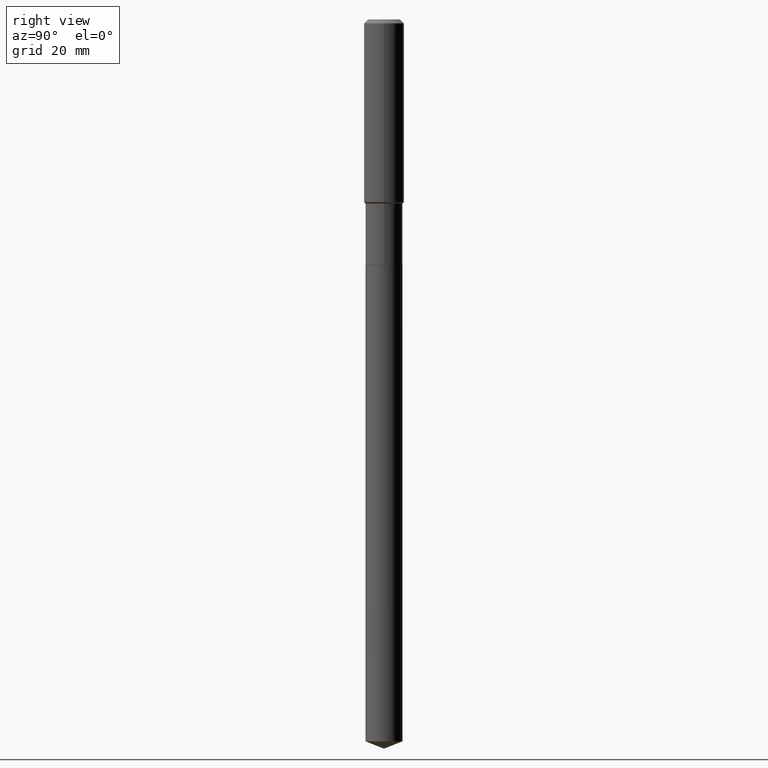
[diagram: clean part render]
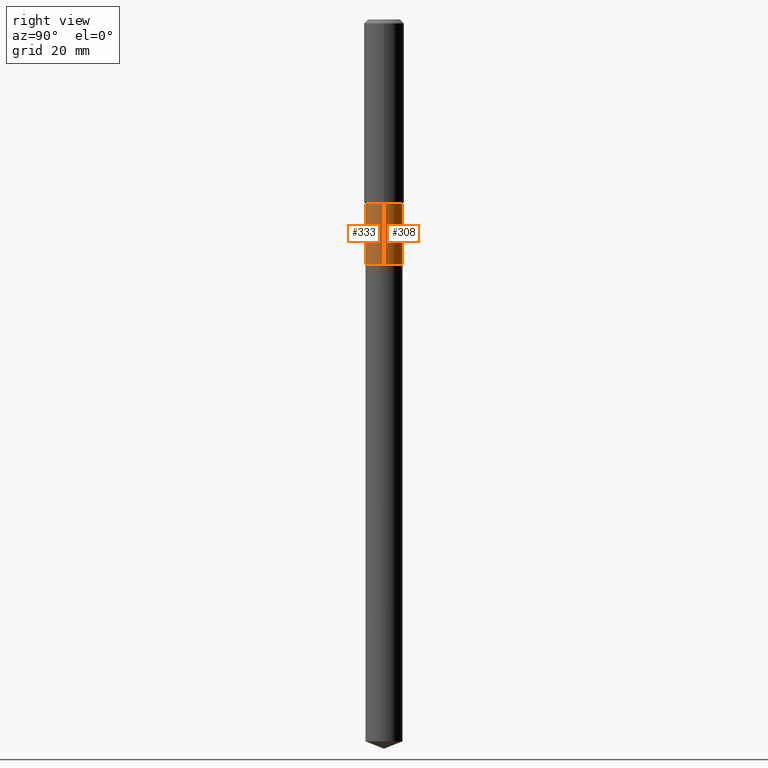
[diagram: same view with one multi-face feature highlighted, each face labeled with its STEP entity id]
A machine part, right view. The highlighted faces form ONE feature: a constant-radius fillet chain: 2 tangent blend faces with common blend radius 3.6995 mm. The faces share edges in the B-rep.
Their STEP definitions:
[1] entity #308 (Cylinder):
#4 = DIRECTION ( 'NONE',  ( -2.445468806185136877E-29, 3.491481338843145188E-15, 1.000000000000000000 ) ) ;
#30 = CARTESIAN_POINT ( 'NONE',  ( 0.1456500000000000017, -7.764356201319383773E-15, -1.932499999999999885 ) ) ;
#35 = CARTESIAN_POINT ( 'NONE',  ( -0.1456499999999999462, -4.874077523223553244E-15, -1.452299999999999702 ) ) ;
#41 = DIRECTION ( 'NONE',  ( -2.445468806185136597E-29, 3.491481338843145583E-15, 1.000000000000000000 ) ) ;
#45 = VECTOR ( 'NONE', #4, 39.37007874015748143 ) ;
#57 = EDGE_CURVE ( 'NONE', #89, #142, #141, .T. ) ;
#85 = CARTESIAN_POINT ( 'NONE',  ( 0.1456499999999999462, -6.087746862406903903E-15, -1.452299999999999702 ) ) ;
#86 = DIRECTION ( 'NONE',  ( 1.000000000000000000, -6.982962677686265922E-15, 4.876176775795935232E-29 ) ) ;
#89 = VERTEX_POINT ( 'NONE', #30 ) ;
#104 = VERTEX_POINT ( 'NONE', #35 ) ;
#113 = CARTESIAN_POINT ( 'NONE',  ( 3.551554347222673607E-29, -5.070678348401899637E-15, -1.452299999999999702 ) ) ;
#141 = LINE ( 'NONE', #327, #410 ) ;
#142 = VERTEX_POINT ( 'NONE', #85 ) ;
#147 = EDGE_CURVE ( 'NONE', #311, #104, #377, .T. ) ;
#150 = AXIS2_PLACEMENT_3D ( 'NONE', #164, #468, #86 ) ;
#153 = DIRECTION ( 'NONE',  ( -2.445468806185136597E-29, 3.491481338843145583E-15, 1.000000000000000000 ) ) ;
#156 = EDGE_CURVE ( 'NONE', #142, #104, #324, .T. ) ;
#164 = CARTESIAN_POINT ( 'NONE',  ( 0.000000000000000000, 0.000000000000000000, 0.000000000000000000 ) ) ;
#206 = ORIENTED_EDGE ( 'NONE', *, *, #57, .F. ) ;
#228 = FACE_OUTER_BOUND ( 'NONE', #241, .T. ) ;
#241 = EDGE_LOOP ( 'NONE', ( #247, #436, #276, #206 ) ) ;
#247 = ORIENTED_EDGE ( 'NONE', *, *, #291, .T. ) ;
#255 = AXIS2_PLACEMENT_3D ( 'NONE', #113, #41, #418 ) ;
#270 = CARTESIAN_POINT ( 'NONE',  ( 4.725868467952776384E-29, -6.747287687314378717E-15, -1.932499999999999885 ) ) ;
#276 = ORIENTED_EDGE ( 'NONE', *, *, #156, .F. ) ;
#291 = EDGE_CURVE ( 'NONE', #89, #311, #460, .T. ) ;
#301 = DIRECTION ( 'NONE',  ( 1.000000000000000000, -6.982962677686269866E-15, 0.000000000000000000 ) ) ;
#306 = AXIS2_PLACEMENT_3D ( 'NONE', #270, #153, #301 ) ;
#308 = ADVANCED_FACE ( 'NONE', ( #228 ), #385, .T. ) ;
#311 = VERTEX_POINT ( 'NONE', #391 ) ;
#324 = CIRCLE ( 'NONE', #255, 0.1456499999999999462 ) ;
#327 = CARTESIAN_POINT ( 'NONE',  ( 0.1456500000000000017, -1.017068514005004661E-15, 7.102151473946780073E-30 ) ) ;
#340 = CARTESIAN_POINT ( 'NONE',  ( -0.1456500000000000017, 1.034905494634585933E-15, -7.164428958956269648E-30 ) ) ;
#377 = LINE ( 'NONE', #340, #45 ) ;
#385 = CYLINDRICAL_SURFACE ( 'NONE', #150, 0.1456500000000000017 ) ;
#391 = CARTESIAN_POINT ( 'NONE',  ( -0.1456500000000000294, -4.874077523223552455E-15, -1.932499999999999885 ) ) ;
#410 = VECTOR ( 'NONE', #480, 39.37007874015748143 ) ;
#418 = DIRECTION ( 'NONE',  ( 1.000000000000000000, -6.982962677686265922E-15, 0.000000000000000000 ) ) ;
#436 = ORIENTED_EDGE ( 'NONE', *, *, #147, .T. ) ;
#460 = CIRCLE ( 'NONE', #306, 0.1456500000000000017 ) ;
#468 = DIRECTION ( 'NONE',  ( -2.445468806185136597E-29, 3.491481338843145583E-15, 1.000000000000000000 ) ) ;
#480 = DIRECTION ( 'NONE',  ( -2.445468806185136877E-29, 3.491481338843145188E-15, 1.000000000000000000 ) ) ;
[2] entity #333 (Cylinder):
#4 = DIRECTION ( 'NONE',  ( -2.445468806185136877E-29, 3.491481338843145188E-15, 1.000000000000000000 ) ) ;
#29 = EDGE_CURVE ( 'NONE', #104, #142, #337, .T. ) ;
#30 = CARTESIAN_POINT ( 'NONE',  ( 0.1456500000000000017, -7.764356201319383773E-15, -1.932499999999999885 ) ) ;
#32 = EDGE_LOOP ( 'NONE', ( #58, #123, #467, #208 ) ) ;
#35 = CARTESIAN_POINT ( 'NONE',  ( -0.1456499999999999462, -4.874077523223553244E-15, -1.452299999999999702 ) ) ;
#45 = VECTOR ( 'NONE', #4, 39.37007874015748143 ) ;
#53 = DIRECTION ( 'NONE',  ( -2.445468806185136597E-29, 3.491481338843145583E-15, 1.000000000000000000 ) ) ;
#57 = EDGE_CURVE ( 'NONE', #89, #142, #141, .T. ) ;
#58 = ORIENTED_EDGE ( 'NONE', *, *, #147, .F. ) ;
#82 = EDGE_CURVE ( 'NONE', #311, #89, #125, .T. ) ;
#85 = CARTESIAN_POINT ( 'NONE',  ( 0.1456499999999999462, -6.087746862406903903E-15, -1.452299999999999702 ) ) ;
#89 = VERTEX_POINT ( 'NONE', #30 ) ;
#104 = VERTEX_POINT ( 'NONE', #35 ) ;
#120 = AXIS2_PLACEMENT_3D ( 'NONE', #422, #53, #380 ) ;
#123 = ORIENTED_EDGE ( 'NONE', *, *, #82, .T. ) ;
#125 = CIRCLE ( 'NONE', #198, 0.1456500000000000017 ) ;
#141 = LINE ( 'NONE', #327, #410 ) ;
#142 = VERTEX_POINT ( 'NONE', #85 ) ;
#147 = EDGE_CURVE ( 'NONE', #311, #104, #377, .T. ) ;
#149 = CARTESIAN_POINT ( 'NONE',  ( 3.551554347222673607E-29, -5.070678348401899637E-15, -1.452299999999999702 ) ) ;
#186 = DIRECTION ( 'NONE',  ( 1.000000000000000000, -6.982962677686269866E-15, 0.000000000000000000 ) ) ;
#198 = AXIS2_PLACEMENT_3D ( 'NONE', #357, #214, #186 ) ;
#208 = ORIENTED_EDGE ( 'NONE', *, *, #29, .F. ) ;
#214 = DIRECTION ( 'NONE',  ( -2.445468806185136597E-29, 3.491481338843145583E-15, 1.000000000000000000 ) ) ;
#311 = VERTEX_POINT ( 'NONE', #391 ) ;
#312 = FACE_OUTER_BOUND ( 'NONE', #32, .T. ) ;
#327 = CARTESIAN_POINT ( 'NONE',  ( 0.1456500000000000017, -1.017068514005004661E-15, 7.102151473946780073E-30 ) ) ;
#333 = ADVANCED_FACE ( 'NONE', ( #312 ), #464, .T. ) ;
#337 = CIRCLE ( 'NONE', #435, 0.1456499999999999462 ) ;
#340 = CARTESIAN_POINT ( 'NONE',  ( -0.1456500000000000017, 1.034905494634585933E-15, -7.164428958956269648E-30 ) ) ;
#357 = CARTESIAN_POINT ( 'NONE',  ( 4.725868467952776384E-29, -6.747287687314378717E-15, -1.932499999999999885 ) ) ;
#377 = LINE ( 'NONE', #340, #45 ) ;
#380 = DIRECTION ( 'NONE',  ( 1.000000000000000000, -6.982962677686265922E-15, 4.876176775795935232E-29 ) ) ;
#391 = CARTESIAN_POINT ( 'NONE',  ( -0.1456500000000000294, -4.874077523223552455E-15, -1.932499999999999885 ) ) ;
#401 = DIRECTION ( 'NONE',  ( 1.000000000000000000, -6.982962677686265922E-15, 0.000000000000000000 ) ) ;
#410 = VECTOR ( 'NONE', #480, 39.37007874015748143 ) ;
#422 = CARTESIAN_POINT ( 'NONE',  ( 0.000000000000000000, 0.000000000000000000, 0.000000000000000000 ) ) ;
#435 = AXIS2_PLACEMENT_3D ( 'NONE', #149, #439, #401 ) ;
#439 = DIRECTION ( 'NONE',  ( -2.445468806185136597E-29, 3.491481338843145583E-15, 1.000000000000000000 ) ) ;
#464 = CYLINDRICAL_SURFACE ( 'NONE', #120, 0.1456500000000000017 ) ;
#467 = ORIENTED_EDGE ( 'NONE', *, *, #57, .T. ) ;
#480 = DIRECTION ( 'NONE',  ( -2.445468806185136877E-29, 3.491481338843145188E-15, 1.000000000000000000 ) ) ;